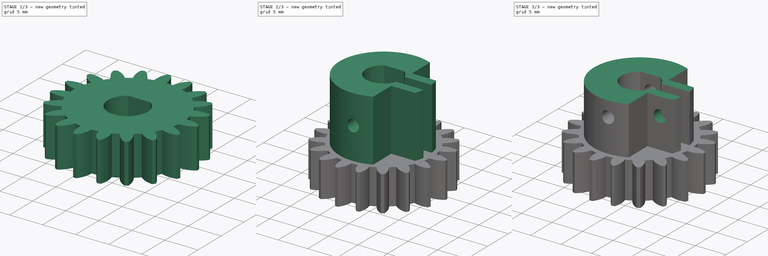
[diagram: build sequence overview — one tinted view per stage of 3, left to right]
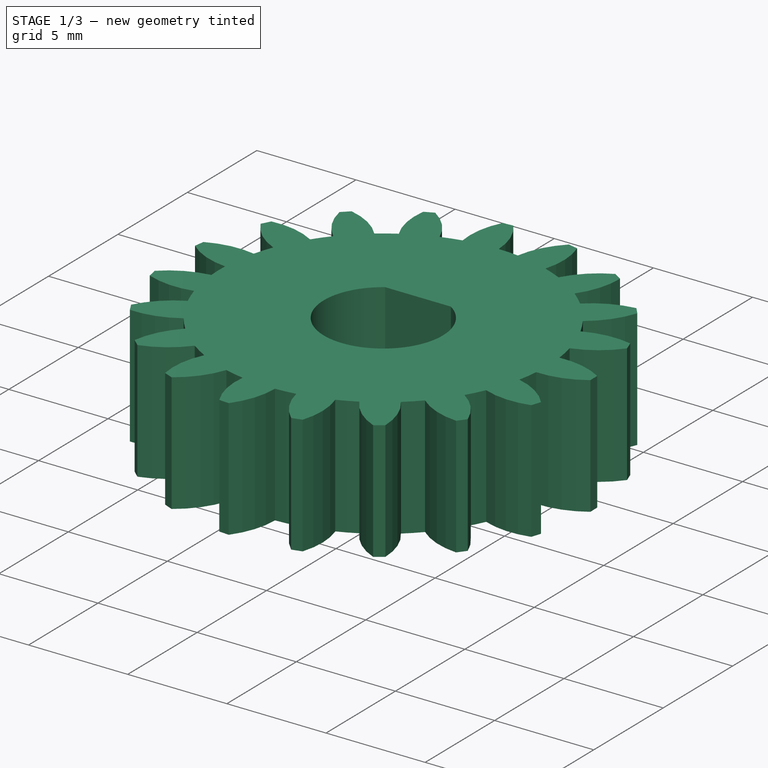
[diagram: stage 1 of 3 — iso view after this stage's code; geometry added in this stage tinted green]
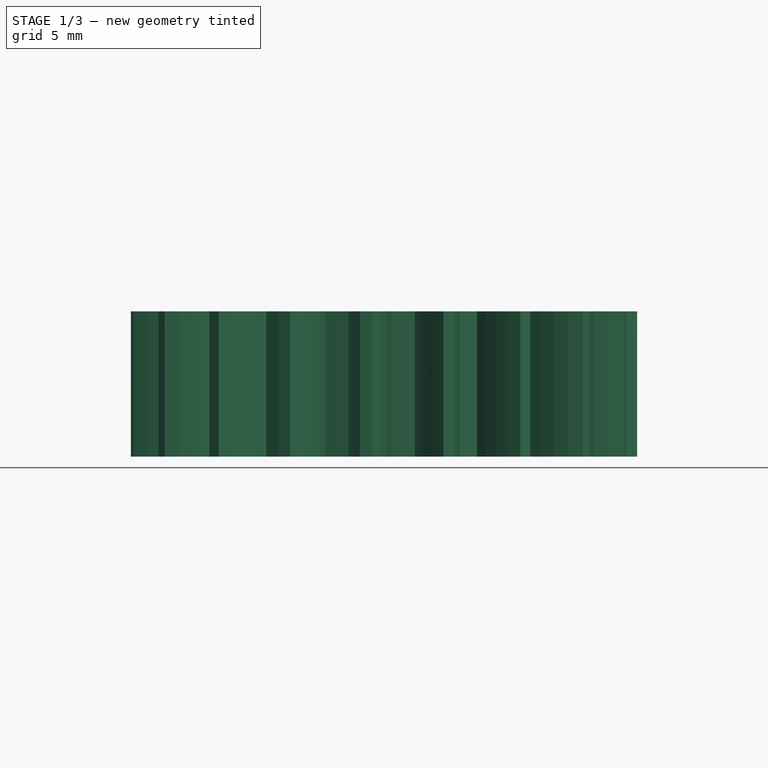
[diagram: stage 1 of 3 — front view after this stage's code; geometry added in this stage tinted green]
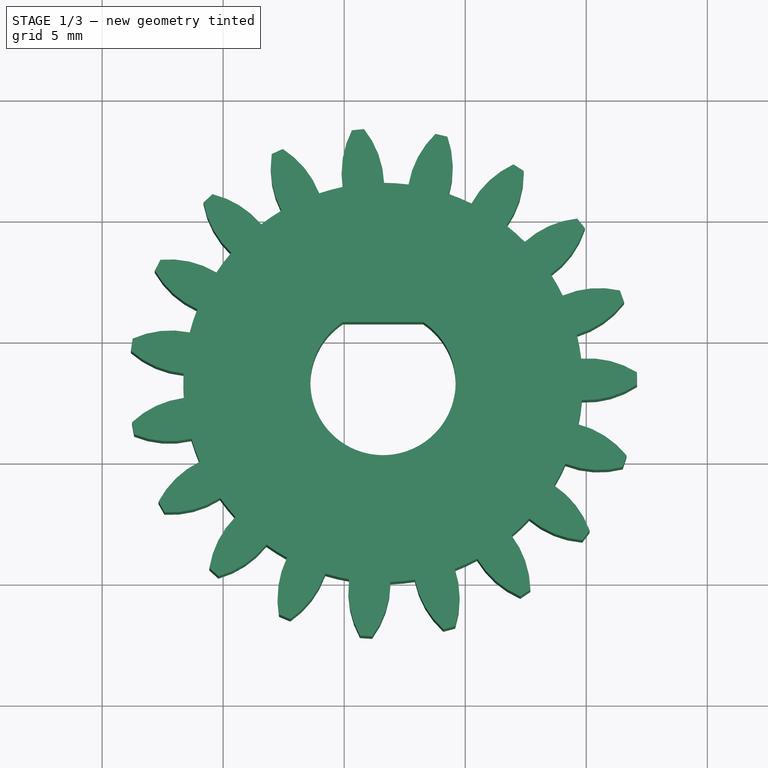
[diagram: stage 1 of 3 — top view after this stage's code; geometry added in this stage tinted green]
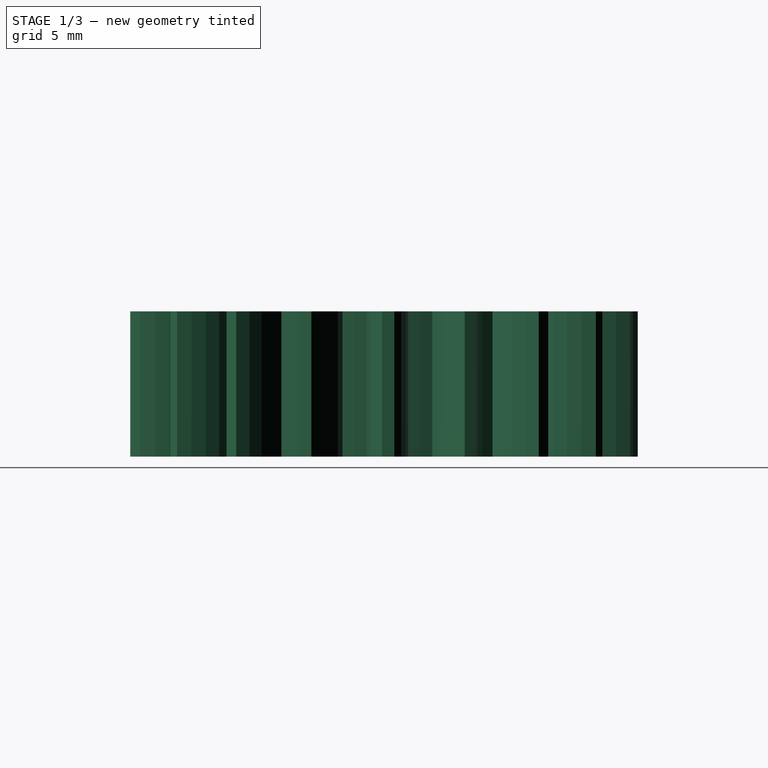
[diagram: stage 1 of 3 — right view after this stage's code; geometry added in this stage tinted green]
FCSTD DOCUMENT  (FreeCAD 0.21R33668 +26 (Git))
Label: Right_Motor_Gear
License: All rights reserved
LicenseURL: https://en.wikipedia.org/wiki/All_rights_reserved
objects: Sketcher::SketchObject×6, PartDesign::Pocket×5, Part::Feature×1, PartDesign::FeatureBase×1, PartDesign::Pad×1, PartDesign::Body×1
note: 21 computed .brp shape members not serialized (recipe doc carries the construction recipe); baked Part::Feature solids carry a one-line shape summary decoded from their .brp

FEATURE [Part::Feature] Part__Feature  label="Rear_Stepper_Gear"
  shape: bbox 20.92 x 20.96 x 6 mm, 247 faces (baked)
FEATURE [PartDesign::FeatureBase] BaseFeature
  BaseFeature = -> Part__Feature
FEATURE [Sketcher::SketchObject] Sketch
  ExternalGeometry = -> [BaseFeature]
  FullyConstrained = false
  MapMode = 5
  Placement = pos=(0,0,76.4933) rot=(0,0,1;0rad)
  Support = -> [BaseFeature]
  sketch-geometry (2):
    g0: ArcOfCircle CenterX=81.6032 CenterY=23.2608 CenterZ=0 NormalX=0 NormalY=0 NormalZ=1 AngleXU=0 Radius=3 StartAngle=2.15648 EndAngle=7.2683
    g1: LineSegment StartX=79.9449 StartY=25.7608 StartZ=0 EndX=83.2615 EndY=25.7608 EndZ=0
  constraints (4):
    c: Diameter(g0) = 6
    c: Horizontal(g1)
    c: Coincident(g1,g0)
    c: Coincident(g1,g0)
FEATURE [PartDesign::Pocket] Pocket
  BaseFeature = -> BaseFeature
  Direction = (0,0,-1)
  Length = 5
  Length2 = 5
  Profile = -> Sketch
  ReferenceAxis = -> Sketch [N_Axis]
  Type = 1
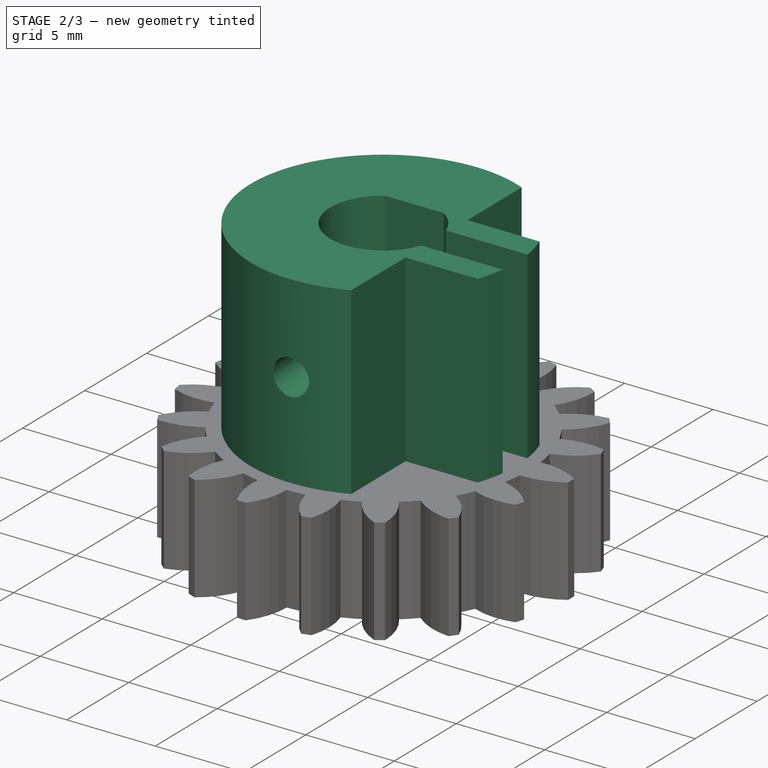
[diagram: stage 2 of 3 — iso view after this stage's code; geometry added in this stage tinted green]
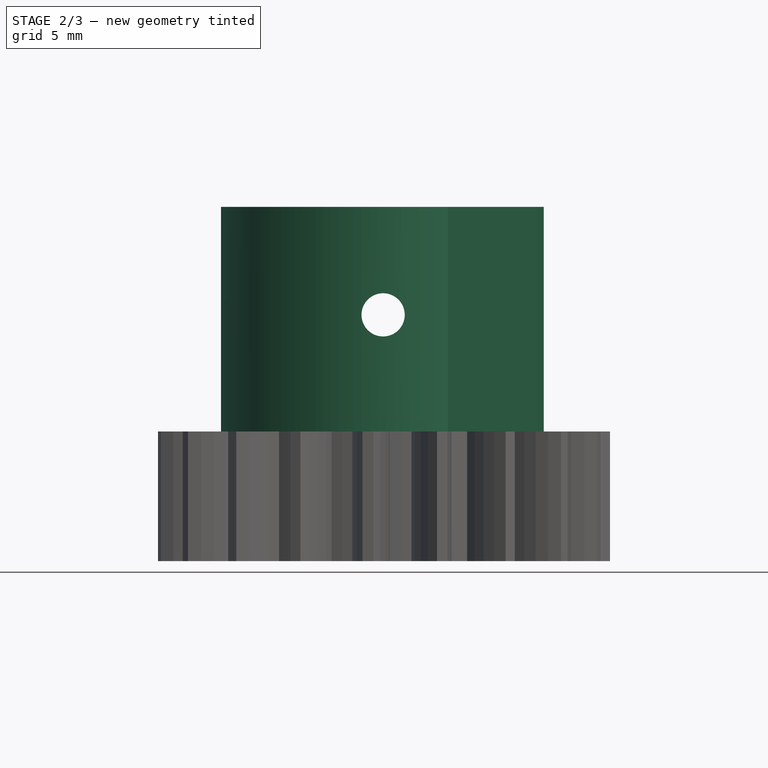
[diagram: stage 2 of 3 — front view after this stage's code; geometry added in this stage tinted green]
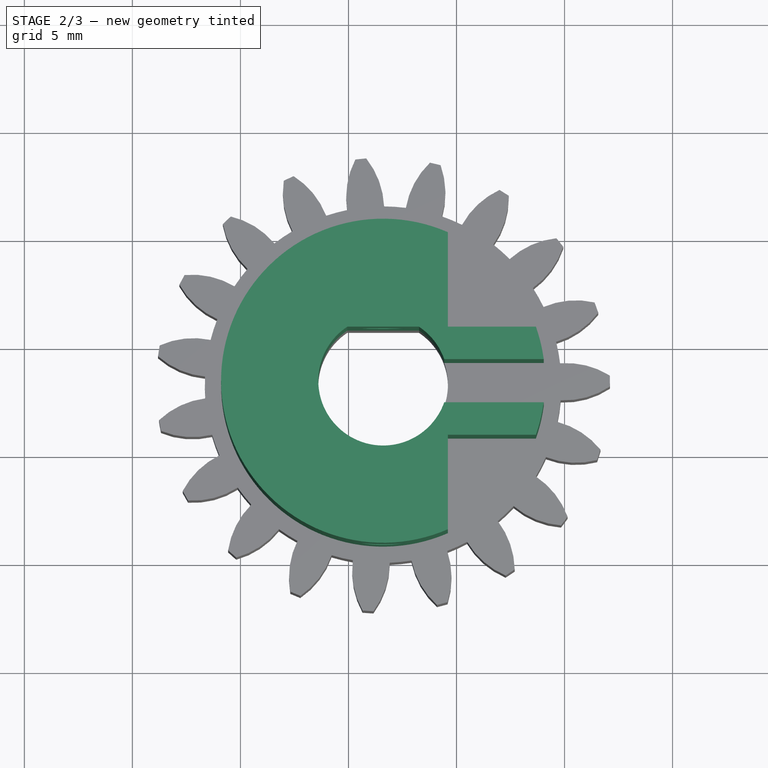
[diagram: stage 2 of 3 — top view after this stage's code; geometry added in this stage tinted green]
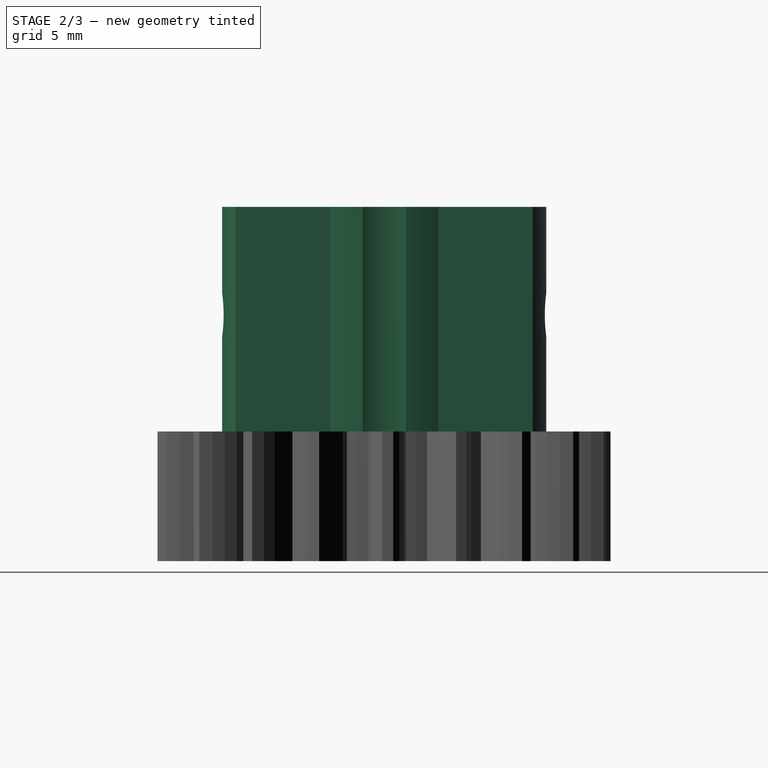
[diagram: stage 2 of 3 — right view after this stage's code; geometry added in this stage tinted green]
FEATURE [Sketcher::SketchObject] Sketch001
  ExternalGeometry = -> [Pocket]
  FullyConstrained = true
  MapMode = 5
  Placement = pos=(0,0,76.4933) rot=(0,0,1;0rad)
  Support = -> [Pocket]
  sketch-geometry (3):
    g0: Circle CenterX=81.6032 CenterY=23.2608 CenterZ=0 NormalX=0 NormalY=0 NormalZ=1 AngleXU=0 Radius=7.5
    g1: ArcOfCircle CenterX=81.6032 CenterY=23.2608 CenterZ=0 NormalX=0 NormalY=0 NormalZ=1 AngleXU=0 Radius=3 StartAngle=2.15648 EndAngle=7.2683
    g2: LineSegment StartX=79.9449 StartY=25.7608 StartZ=0 EndX=83.2615 EndY=25.7608 EndZ=0
  constraints (9):
    c: Coincident(g0,g-3)
    c: Diameter(g0) = 15
    c: Horizontal(g2)
    c: Diameter(g1) = 6
    c: Coincident(g2,g1)
    c: DistanceX(g-4,g1) = 0
    c: DistanceX(g1,g-4) = 0
    c: Coincident(g2,g1)
    c: Horizontal(g1,g-4)
FEATURE [PartDesign::Pad] Pad
  BaseFeature = -> Pocket
  Direction = (0,0,1)
  Length = 10.4
  Length2 = 10
  Profile = -> Sketch001
  ReferenceAxis = -> Sketch001 [N_Axis]
  Type = 0
FEATURE [Sketcher::SketchObject] Sketch002
  ExternalGeometry = -> [Pad]
  FullyConstrained = true
  MapMode = 5
  Placement = pos=(0,25.7608,0) rot=(1,0,0;1.5708rad)
  Support = -> [Pad]
  sketch-geometry (1):
    g0: Circle CenterX=81.6035 CenterY=81.8933 CenterZ=0 NormalX=0 NormalY=0 NormalZ=1 AngleXU=0 Radius=1
  constraints (4):
    c: DistanceX(g-3,g-3) = 3.31662
    c: DistanceY(g0,g-3) = 5
    c: Diameter(g0) = 2
    c: DistanceX(g0,g-3) = 1.658
FEATURE [PartDesign::Pocket] Pocket001
  BaseFeature = -> Pad
  Direction = (0,1,-2e-16)
  Length = 100
  Length2 = 100
  Profile = -> Sketch002
  ReferenceAxis = -> Sketch002 [N_Axis]
  Type = 4
FEATURE [Sketcher::SketchObject] Sketch003
  ExternalGeometry = -> [Pocket001]
  FullyConstrained = false
  MapMode = 5
  Placement = pos=(0,0,86.8933) rot=(0,0,1;0rad)
  Support = -> [Pocket001]
  sketch-geometry (12):
    g0: LineSegment StartX=83.5883 StartY=24.2608 StartZ=0 EndX=89.8073 EndY=24.2608 EndZ=0
    g1: LineSegment StartX=89.8073 StartY=24.2608 StartZ=0 EndX=89.8073 EndY=22.2608 EndZ=0
    g2: LineSegment StartX=89.8073 StartY=22.2608 StartZ=0 EndX=83.5883 EndY=22.2608 EndZ=0
    g3: LineSegment StartX=83.5883 StartY=22.2608 StartZ=0 EndX=83.5883 EndY=24.2608 EndZ=0
    g4: LineSegment StartX=84.6032 StartY=30.7504 StartZ=0 EndX=90.426 EndY=30.7504 EndZ=0
    g5: LineSegment StartX=90.426 StartY=30.7504 StartZ=0 EndX=90.426 EndY=25.7608 EndZ=0
    g6: LineSegment StartX=90.426 StartY=25.7608 StartZ=0 EndX=84.6032 EndY=25.7608 EndZ=0
    g7: LineSegment StartX=84.6032 StartY=25.7608 StartZ=0 EndX=84.6032 EndY=30.7504 EndZ=0
    g8: LineSegment StartX=84.6032 StartY=20.7608 StartZ=0 EndX=89.8528 EndY=20.7608 EndZ=0
    g9: LineSegment StartX=89.8528 StartY=20.7608 StartZ=0 EndX=89.8528 EndY=15.759 EndZ=0
    g10: LineSegment StartX=89.8528 StartY=15.759 StartZ=0 EndX=84.6032 EndY=15.759 EndZ=0
    g11: LineSegment StartX=84.6032 StartY=15.759 StartZ=0 EndX=84.6032 EndY=20.7608 EndZ=0
  constraints (30):
    c: Coincident(g0,g1)
    c: Coincident(g1,g2)
    c: Coincident(g2,g3)
    c: Coincident(g3,g0)
    c: Horizontal(g0)
    c: Horizontal(g2)
    c: Vertical(g1)
    c: Vertical(g3)
    c: DistanceY(g1,g1) = 2
    c: Coincident(g4,g5)
    c: Coincident(g5,g6)
    c: Coincident(g6,g7)
    c: Coincident(g7,g4)
    c: Horizontal(g4)
    c: Horizontal(g6)
    c: Vertical(g5)
    c: Vertical(g7)
    c: Coincident(g8,g9)
    c: Coincident(g9,g10)
    c: Coincident(g10,g11)
    c: Coincident(g11,g8)
    c: Horizontal(g8)
    c: Horizontal(g10)
    c: Vertical(g9)
    c: Vertical(g11)
    c: Vertical(g6,g8)
    c: DistanceX(g-3,g6) = 3
    c: DistanceY(g0,g5) = 1.5
    c: DistanceY(g8,g1) = 1.5
    c: DistanceY(g2,g-3) = 1
FEATURE [PartDesign::Pocket] Pocket002
  BaseFeature = -> Pocket001
  Direction = (0,0,-1)
  Length = 0
  Length2 = 5
  Profile = -> Sketch003
  ReferenceAxis = -> Sketch003 [N_Axis]
  Type = 3
  UpToFace = -> Pocket001 [Face1]
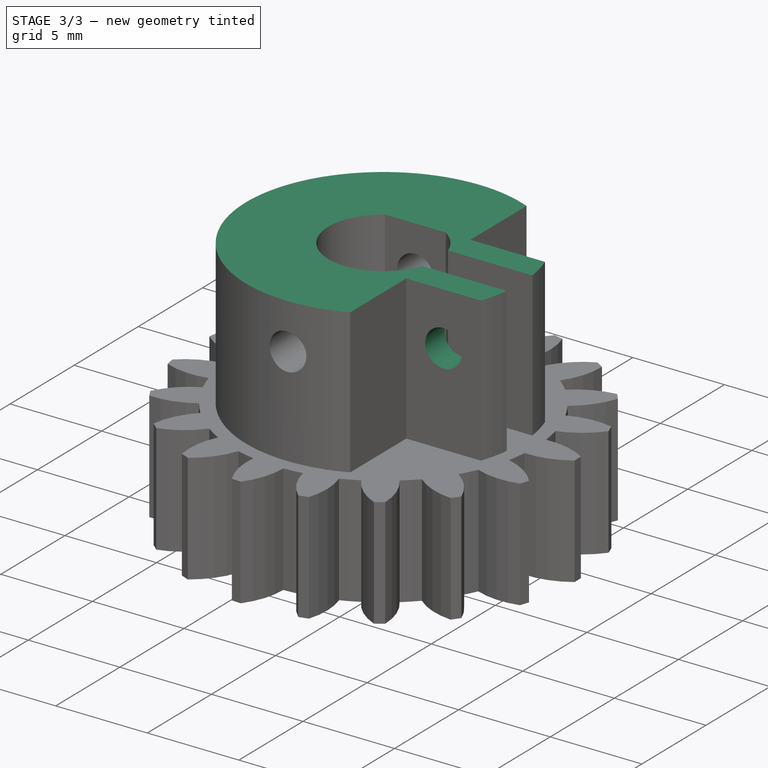
[diagram: stage 3 of 3 — iso view after this stage's code; geometry added in this stage tinted green]
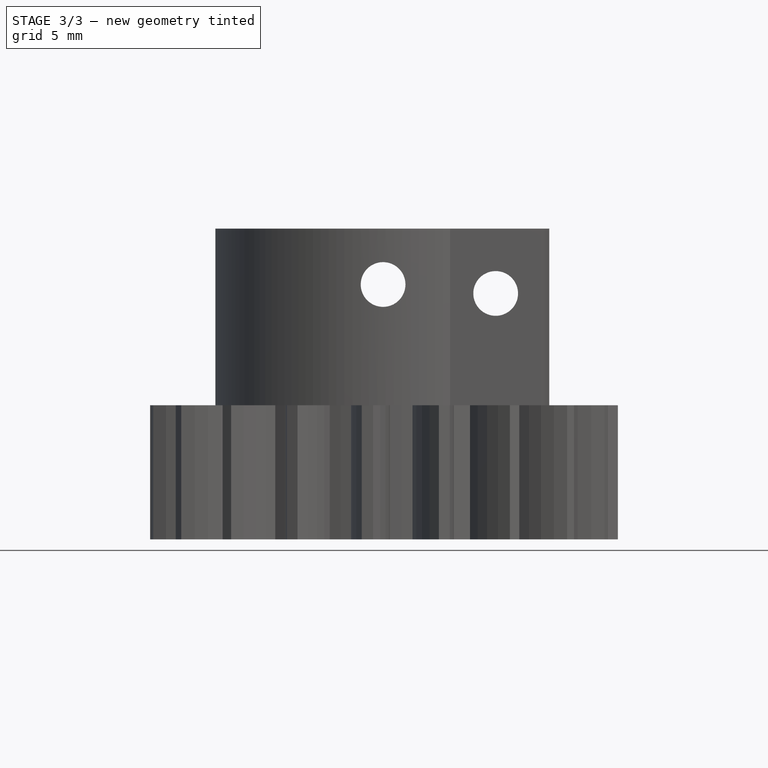
[diagram: stage 3 of 3 — front view after this stage's code; geometry added in this stage tinted green]
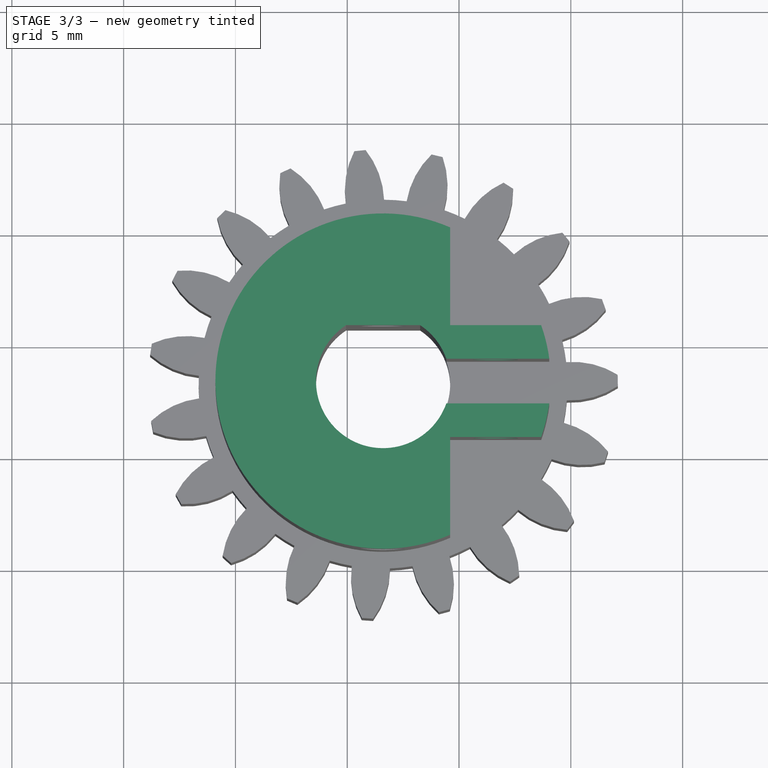
[diagram: stage 3 of 3 — top view after this stage's code; geometry added in this stage tinted green]
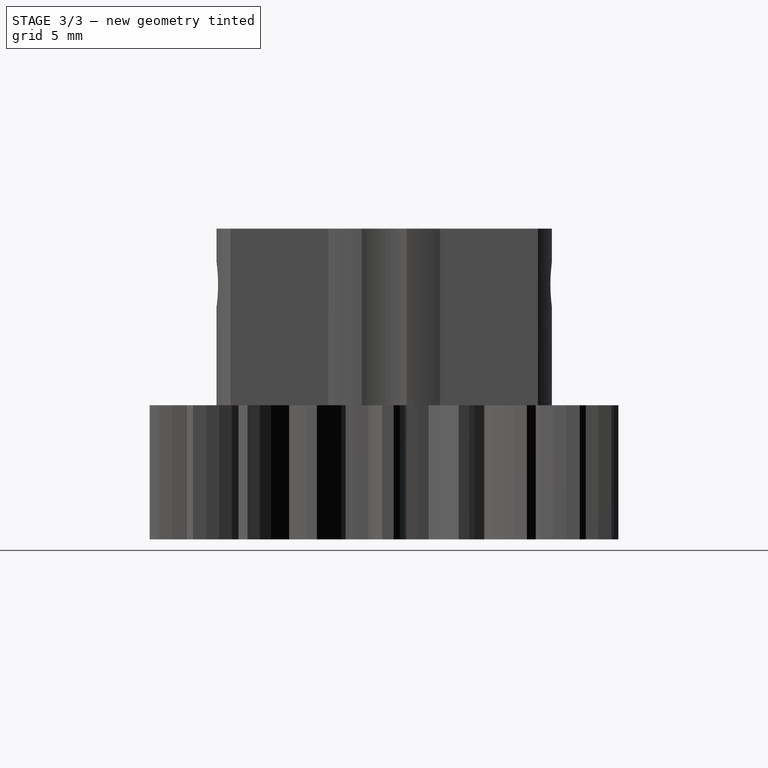
[diagram: stage 3 of 3 — right view after this stage's code; geometry added in this stage tinted green]
FEATURE [Sketcher::SketchObject] Sketch004
  ExternalGeometry = -> [Pocket002]
  FullyConstrained = true
  MapMode = 5
  Placement = pos=(0,25.7608,0) rot=(0,0.707107,0.707107;3.14159rad)
  Support = -> [Pocket002]
  sketch-geometry (2):
    g0: Circle CenterX=-86.6387 CenterY=85.4933 CenterZ=0 NormalX=0 NormalY=0 NormalZ=1 AngleXU=0 Radius=1
    g1: Circle CenterX=-86.6387 CenterY=81.4933 CenterZ=0 NormalX=0 NormalY=0 NormalZ=1 AngleXU=0 Radius=1
  constraints (8):
    c: Diameter(g0) = 2
    c: Diameter(g1) = 2
    c: DistanceX(g-3,g-3) = 4.07107
    c: DistanceX(g-4,g-4) = 0
    c: DistanceX(g0,g-3) = 2.03553
    c: Vertical(g0,g1)
    c: DistanceY(g-4,g1) = 5
    c: DistanceY(g-4,g0) = 9
FEATURE [PartDesign::Pocket] Pocket003
  BaseFeature = -> Pocket002
  Direction = (0,-1,-2e-16)
  Length = 5
  Length2 = 5
  Profile = -> Sketch004
  ReferenceAxis = -> Sketch004 [N_Axis]
  Type = 1
FEATURE [Sketcher::SketchObject] Sketch005
  ExternalGeometry = -> [Pocket003]
  FullyConstrained = false
  MapMode = 5
  Placement = pos=(0,25.7608,0) rot=(0,0.707107,0.707107;3.14159rad)
  Support = -> [Pocket003]
  sketch-geometry (4):
    g0: LineSegment StartX=-91.0692 StartY=93.3619 StartZ=0 EndX=-69.8609 EndY=93.3619 EndZ=0
    g1: LineSegment StartX=-69.8609 StartY=93.3619 StartZ=0 EndX=-69.8609 EndY=84.3933 EndZ=0
    g2: LineSegment StartX=-69.8609 StartY=84.3933 StartZ=0 EndX=-91.0692 EndY=84.3933 EndZ=0
    g3: LineSegment StartX=-91.0692 StartY=84.3933 StartZ=0 EndX=-91.0692 EndY=93.3619 EndZ=0
  constraints (9):
    c: Coincident(g0,g1)
    c: Coincident(g1,g2)
    c: Coincident(g2,g3)
    c: Coincident(g3,g0)
    c: Horizontal(g0)
    c: Horizontal(g2)
    c: Vertical(g1)
    c: Vertical(g3)
    c: DistanceY(g2,g-3) = 2.5
FEATURE [PartDesign::Pocket] Pocket004
  BaseFeature = -> Pocket003
  Direction = (0,-1,-2e-16)
  Length = 100
  Length2 = 100
  Profile = -> Sketch005
  ReferenceAxis = -> Sketch005 [N_Axis]
  Type = 4
FEATURE [PartDesign::Body] Body
  BaseFeature = -> Part__Feature
  Group = -> [BaseFeature,Sketch,Pocket,Sketch001,Pad,Sketch002,Pocket001,Sketch003,Pocket002,Sketch004,Pocket003,Sketch005,Pocket004]
  Origin = -> Origin
  Tip = -> Pocket004
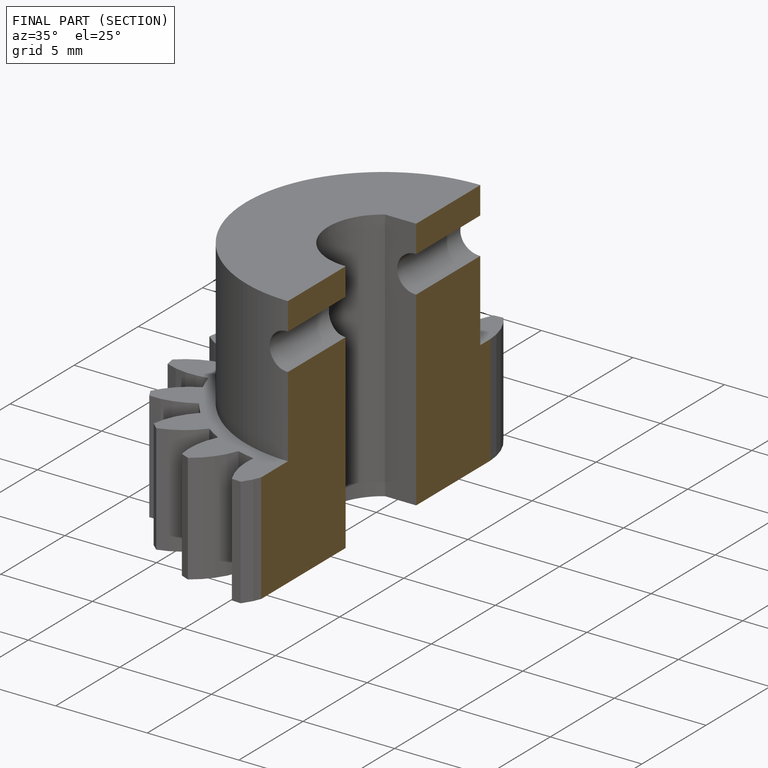
[diagram: finished part — half-section view (interior)]
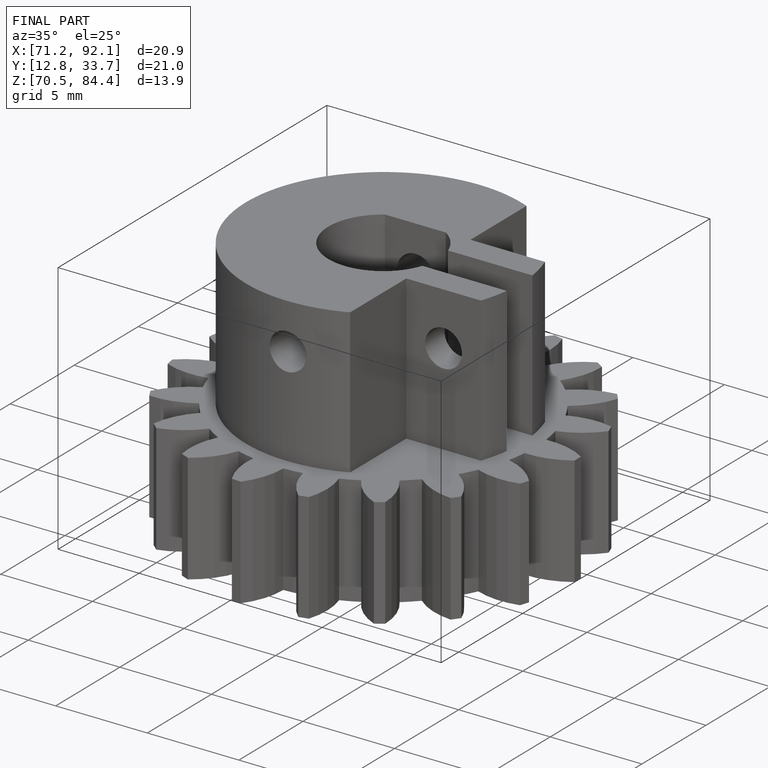
[diagram: finished part — iso view with bounding-box wireframe]
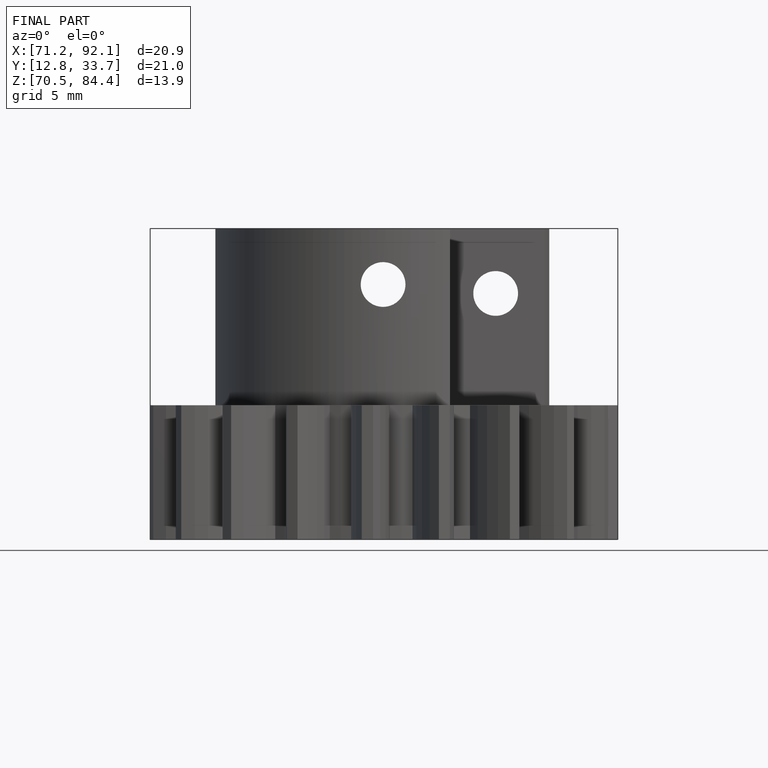
[diagram: finished part — front view with bounding-box wireframe]
